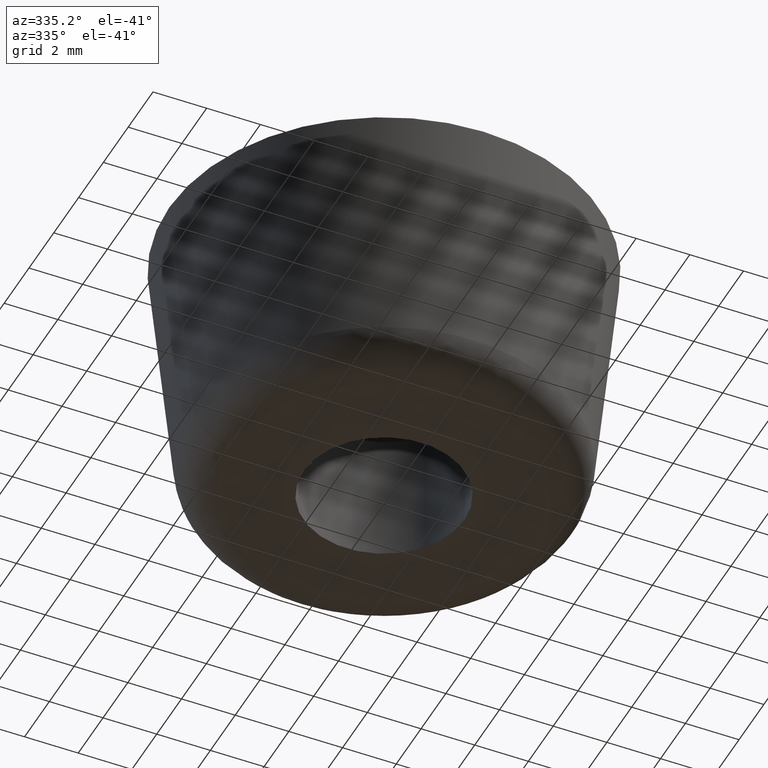
[diagram: clean part render]
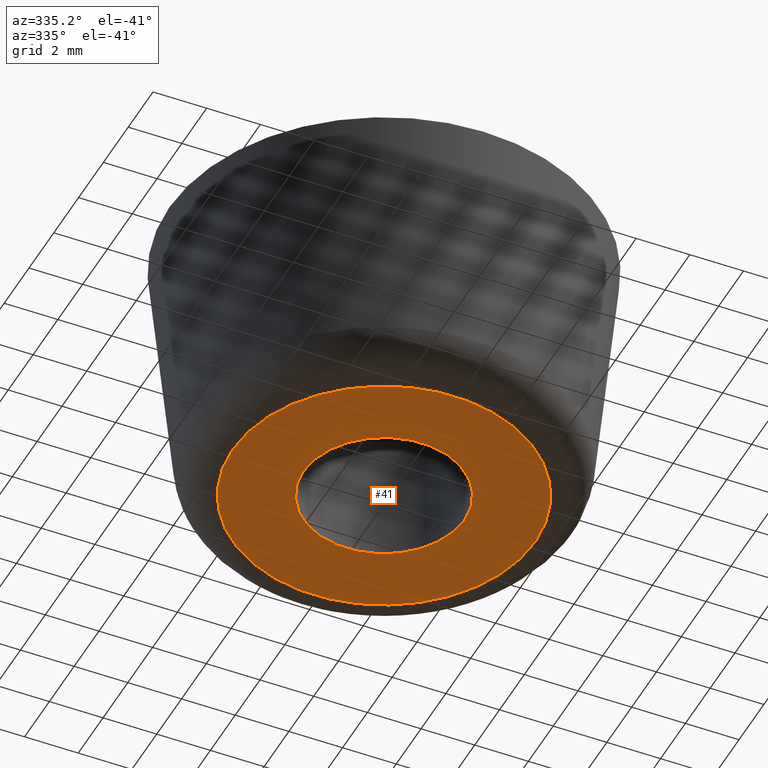
[diagram: same view with one face highlighted and labeled with its STEP entity id]
A machine part, auxiliary view. The second image highlights one B-rep face of the part: STEP entity #41.
In plain terms, the highlighted planar face has unit normal (-0, 0, -1).
Its self-contained STEP definition (entity closure, byte-faithful):
#41=ADVANCED_FACE('',(#63,#64),#62,.T.);
#62=PLANE('',#173);
#63=FACE_OUTER_BOUND('',#174,.T.);
#64=FACE_BOUND('',#175,.T.);
#170=CARTESIAN_POINT('',(1.29777929107E+01,-1.17277547955E+01,-1.00000000000E+01));
#171=DIRECTION('',(-0.00000000000E+00,0.00000000000E+00,-1.00000000000E+00));
#172=DIRECTION('',(-1.00000000000E+00,0.00000000000E+00,0.00000000000E+00));
#173=AXIS2_PLACEMENT_3D('',#170,#171,#172);
#174=EDGE_LOOP('',(#280,#281));
#175=EDGE_LOOP('',(#282,#283));
#280=ORIENTED_EDGE('',*,*,#324,.T.);
#281=ORIENTED_EDGE('',*,*,#325,.T.);
#282=ORIENTED_EDGE('',*,*,#326,.F.);
#283=ORIENTED_EDGE('',*,*,#327,.F.);
#324=EDGE_CURVE('',#370,#371,#372,.T.);
#325=EDGE_CURVE('',#371,#370,#378,.T.);
#326=EDGE_CURVE('',#384,#385,#386,.T.);
#327=EDGE_CURVE('',#385,#384,#392,.T.);
#370=VERTEX_POINT('',#508);
#371=VERTEX_POINT('',#509);
#372=CIRCLE('',#513,5.64251865683E+00);
#378=CIRCLE('',#517,5.64251865683E+00);
#384=VERTEX_POINT('',#518);
#385=VERTEX_POINT('',#519);
#386=CIRCLE('',#523,3.00000000000E+00);
#392=CIRCLE('',#527,3.00000000000E+00);
#508=CARTESIAN_POINT('',(-5.64251865683E+00,0.00000000000E+00,-1.00000000000E+01));
#509=CARTESIAN_POINT('',(5.64251865683E+00,2.96059473233E-16,-1.00000000000E+01));
#510=CARTESIAN_POINT('',(1.42108547152E-14,0.00000000000E+00,-1.00000000000E+01));
#511=DIRECTION('',(-0.00000000000E+00,0.00000000000E+00,-1.00000000000E+00));
#512=DIRECTION('',(-1.00000000000E+00,-1.22460635382E-16,0.00000000000E+00));
#513=AXIS2_PLACEMENT_3D('',#510,#511,#512);
#514=CARTESIAN_POINT('',(1.42108547152E-14,0.00000000000E+00,-1.00000000000E+01));
#515=DIRECTION('',(-0.00000000000E+00,0.00000000000E+00,-1.00000000000E+00));
#516=DIRECTION('',(-1.00000000000E+00,-1.22460635382E-16,0.00000000000E+00));
#517=AXIS2_PLACEMENT_3D('',#514,#515,#516);
#518=CARTESIAN_POINT('',(3.00000000000E+00,-1.48029736617E-16,-1.00000000000E+01));
#519=CARTESIAN_POINT('',(-3.00000000000E+00,0.00000000000E+00,-1.00000000000E+01));
#520=CARTESIAN_POINT('',(1.42108547152E-14,0.00000000000E+00,-1.00000000000E+01));
#521=DIRECTION('',(-0.00000000000E+00,0.00000000000E+00,-1.00000000000E+00));
#522=DIRECTION('',(-1.00000000000E+00,-1.22460635382E-16,0.00000000000E+00));
#523=AXIS2_PLACEMENT_3D('',#520,#521,#522);
#524=CARTESIAN_POINT('',(1.42108547152E-14,0.00000000000E+00,-1.00000000000E+01));
#525=DIRECTION('',(-0.00000000000E+00,0.00000000000E+00,-1.00000000000E+00));
#526=DIRECTION('',(-1.00000000000E+00,-1.22460635382E-16,0.00000000000E+00));
#527=AXIS2_PLACEMENT_3D('',#524,#525,#526);